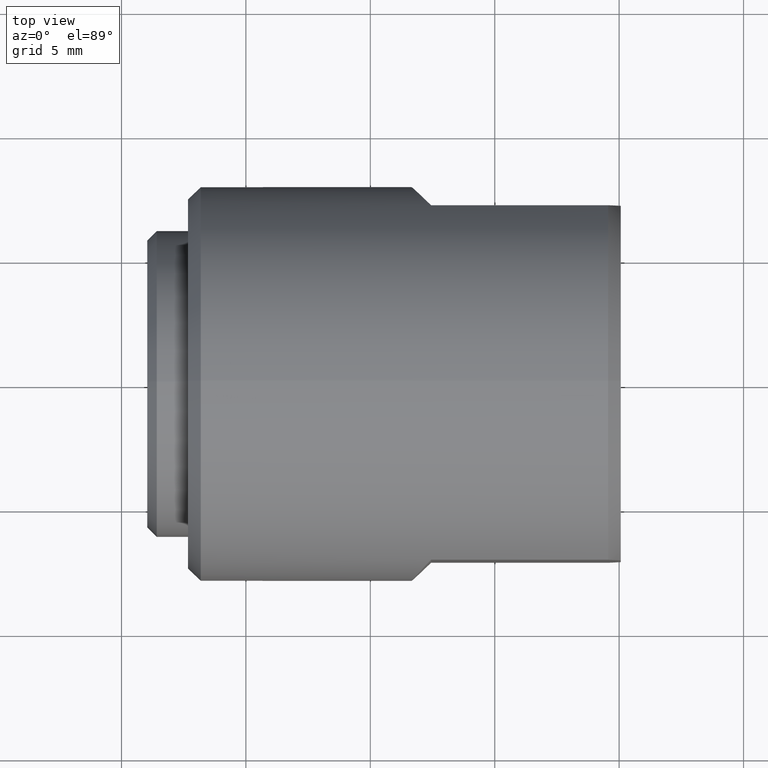
[diagram: clean part render]
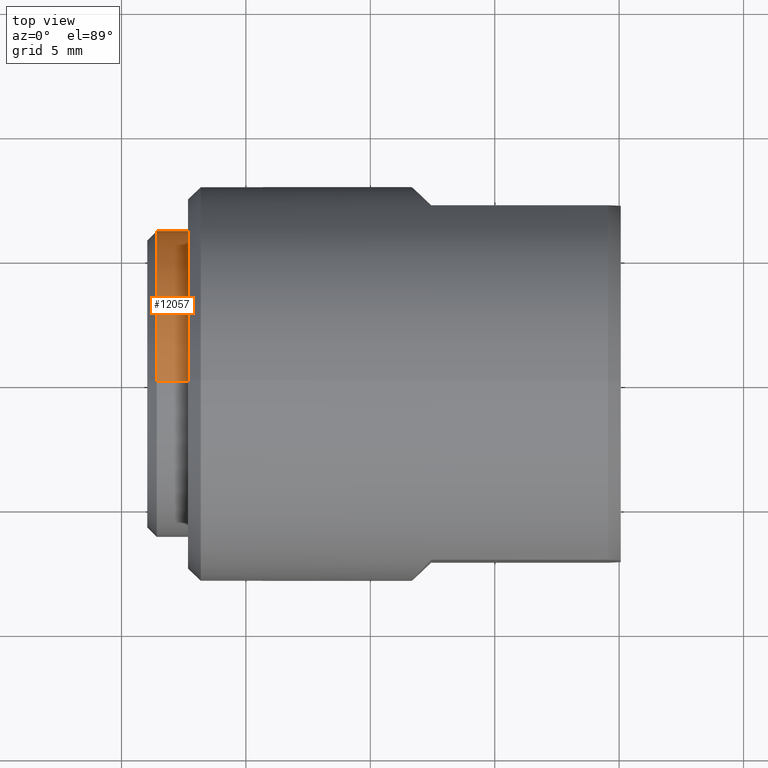
[diagram: same view with one face highlighted and labeled with its STEP entity id]
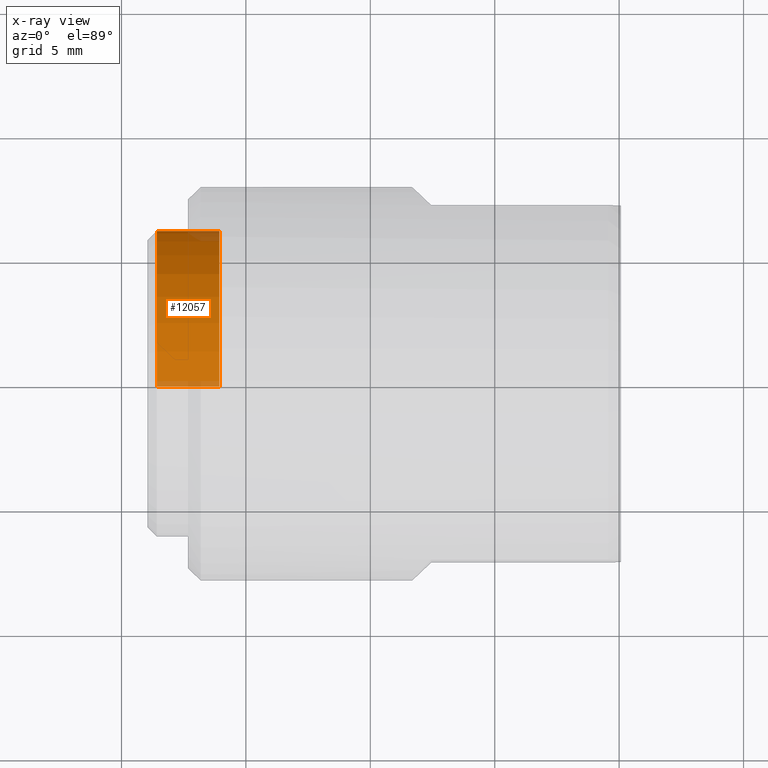
[diagram: x-ray of the same camera — body ghosted, the highlighted face saturated]
A machine part, top view. The second image highlights one B-rep face of the part: STEP entity #12057.
The next image is the same camera in x-ray: the body ghosted, the highlighted face saturated — about 6% of this face is hidden behind the body in this view.
In plain terms, the highlighted cylindrical surface (partial cylindrical patch) has radius 6.1468 mm, axis along (-1, -0, -0).
Its self-contained STEP definition (entity closure, byte-faithful):
#427 = CIRCLE ( 'NONE', #10794, 0.2420000000000000207 ) ;
#566 = LINE ( 'NONE', #7363, #11831 ) ;
#587 = CARTESIAN_POINT ( 'NONE',  ( -0.04199999999999998873, 0.0000000000000000000, 0.2420000000000000207 ) ) ;
#611 = EDGE_CURVE ( 'NONE', #6632, #1628, #10261, .T. ) ;
#1438 = CARTESIAN_POINT ( 'NONE',  ( -0.1409999999999999865, 2.963645253936594978E-17, -0.2420000000000000207 ) ) ;
#1628 = VERTEX_POINT ( 'NONE', #2555 ) ;
#1714 = CYLINDRICAL_SURFACE ( 'NONE', #8158, 0.2420000000000000207 ) ;
#1888 = VERTEX_POINT ( 'NONE', #10363 ) ;
#2555 = CARTESIAN_POINT ( 'NONE',  ( -0.04199999999999998873, 2.963645253936594978E-17, -0.2420000000000000207 ) ) ;
#2940 = AXIS2_PLACEMENT_3D ( 'NONE', #9959, #5312, #8931 ) ;
#3277 = DIRECTION ( 'NONE',  ( 0.0000000000000000000, 0.0000000000000000000, 1.000000000000000000 ) ) ;
#3794 = DIRECTION ( 'NONE',  ( -1.000000000000000000, -0.0000000000000000000, -0.0000000000000000000 ) ) ;
#5187 = ORIENTED_EDGE ( 'NONE', *, *, #11276, .T. ) ;
#5239 = CARTESIAN_POINT ( 'NONE',  ( -0.1409999999999999865, 0.0000000000000000000, 0.0000000000000000000 ) ) ;
#5305 = ORIENTED_EDGE ( 'NONE', *, *, #9785, .F. ) ;
#5312 = DIRECTION ( 'NONE',  ( -1.000000000000000000, -0.0000000000000000000, -0.0000000000000000000 ) ) ;
#5508 = DIRECTION ( 'NONE',  ( 0.0000000000000000000, 0.0000000000000000000, 1.000000000000000000 ) ) ;
#6308 = DIRECTION ( 'NONE',  ( -1.000000000000000000, -0.0000000000000000000, -0.0000000000000000000 ) ) ;
#6555 = EDGE_LOOP ( 'NONE', ( #6744, #5187, #6797, #5305 ) ) ;
#6632 = VERTEX_POINT ( 'NONE', #587 ) ;
#6744 = ORIENTED_EDGE ( 'NONE', *, *, #611, .T. ) ;
#6797 = ORIENTED_EDGE ( 'NONE', *, *, #7138, .F. ) ;
#7138 = EDGE_CURVE ( 'NONE', #1888, #12286, #427, .T. ) ;
#7363 = CARTESIAN_POINT ( 'NONE',  ( 0.0000000000000000000, 2.963645253936594978E-17, -0.2420000000000000207 ) ) ;
#8139 = VECTOR ( 'NONE', #6308, 39.37007874015748143 ) ;
#8158 = AXIS2_PLACEMENT_3D ( 'NONE', #12451, #3794, #5508 ) ;
#8556 = FACE_OUTER_BOUND ( 'NONE', #6555, .T. ) ;
#8931 = DIRECTION ( 'NONE',  ( 0.0000000000000000000, 0.0000000000000000000, 1.000000000000000000 ) ) ;
#9156 = LINE ( 'NONE', #12103, #8139 ) ;
#9785 = EDGE_CURVE ( 'NONE', #6632, #1888, #9156, .T. ) ;
#9959 = CARTESIAN_POINT ( 'NONE',  ( -0.04199999999999998873, 0.0000000000000000000, 0.0000000000000000000 ) ) ;
#10261 = CIRCLE ( 'NONE', #2940, 0.2420000000000000207 ) ;
#10363 = CARTESIAN_POINT ( 'NONE',  ( -0.1409999999999999865, 0.0000000000000000000, 0.2420000000000000207 ) ) ;
#10794 = AXIS2_PLACEMENT_3D ( 'NONE', #5239, #11997, #3277 ) ;
#11257 = DIRECTION ( 'NONE',  ( -1.000000000000000000, -0.0000000000000000000, -0.0000000000000000000 ) ) ;
#11276 = EDGE_CURVE ( 'NONE', #1628, #12286, #566, .T. ) ;
#11831 = VECTOR ( 'NONE', #11257, 39.37007874015748143 ) ;
#11997 = DIRECTION ( 'NONE',  ( -1.000000000000000000, -0.0000000000000000000, -0.0000000000000000000 ) ) ;
#12057 = ADVANCED_FACE ( 'NONE', ( #8556 ), #1714, .T. ) ;
#12103 = CARTESIAN_POINT ( 'NONE',  ( 0.0000000000000000000, 0.0000000000000000000, 0.2420000000000000207 ) ) ;
#12286 = VERTEX_POINT ( 'NONE', #1438 ) ;
#12451 = CARTESIAN_POINT ( 'NONE',  ( 0.0000000000000000000, 0.0000000000000000000, 0.0000000000000000000 ) ) ;